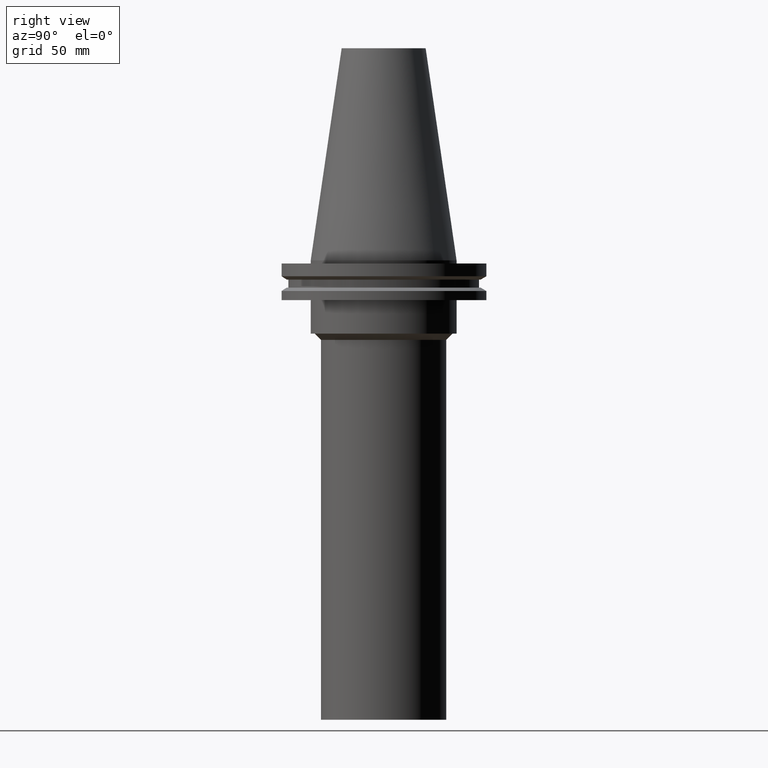
[diagram: clean part render]
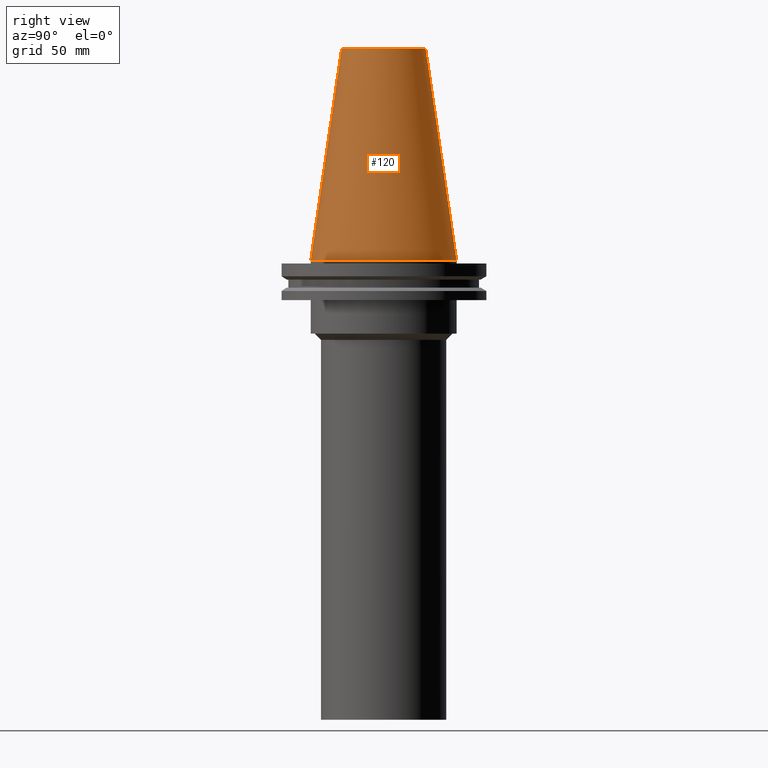
[diagram: same view with one face highlighted and labeled with its STEP entity id]
A machine part, right view. The second image highlights one B-rep face of the part: STEP entity #120.
In plain terms, the highlighted conical surface has half-angle 8.297 deg.
Its self-contained STEP definition (entity closure, byte-faithful):
#96=EDGE_CURVE('Unnamed[1]',#218,#218,#219,.T.);
#120=ADVANCED_FACE('Unnamed[1]',(#255,#256),#257,.T.);
#131=EDGE_CURVE('Unnamed[1]',#274,#274,#275,.T.);
#218=VERTEX_POINT('',#372);
#219=CIRCLE('',#373,20.1083333333333);
#255=FACE_BOUND('',#419,.T.);
#256=FACE_BOUND('',#420,.T.);
#257=CONICAL_SURFACE('',#421,27.5166666666667,0.144812498238939);
#274=VERTEX_POINT('',#442);
#275=CIRCLE('',#443,34.925);
#372=CARTESIAN_POINT('',(-6.22120573966855E-015,20.1083333333332,101.6));
#373=AXIS2_PLACEMENT_3D('',#532,#533,#534);
#419=EDGE_LOOP('',(#572));
#420=EDGE_LOOP('',(#573));
#421=AXIS2_PLACEMENT_3D('',#574,#575,#576);
#442=CARTESIAN_POINT('',(4.82986938111671E-029,34.925,-7.9153078510529E-013));
#443=AXIS2_PLACEMENT_3D('',#595,#596,#597);
#532=CARTESIAN_POINT('',(-6.22120573966855E-015,-6.80832908752505E-014,101.6));
#533=DIRECTION('',(6.12323399573677E-017,4.32878246115847E-016,-1.0));
#534=DIRECTION('',(-3.13333006570868E-032,1.0,4.32878246115847E-016));
#572=ORIENTED_EDGE('',*,*,#131,.F.);
#573=ORIENTED_EDGE('',*,*,#96,.T.);
#574=CARTESIAN_POINT('',(-3.11060286983425E-015,-4.60930759725683E-014,50.7999999999996));
#575=DIRECTION('',(6.12323399573677E-017,4.32878246115815E-016,-1.0));
#576=DIRECTION('',(-3.13333006570796E-032,1.0,4.32878246115815E-016));
#595=CARTESIAN_POINT('',(4.87291776723366E-029,-2.41028610698862E-014,-7.95807864051312E-013));
#596=DIRECTION('',(6.12323399573677E-017,4.32878246115797E-016,-1.0));
#597=DIRECTION('',(-3.13333006570805E-032,1.0,4.32878246115797E-016));